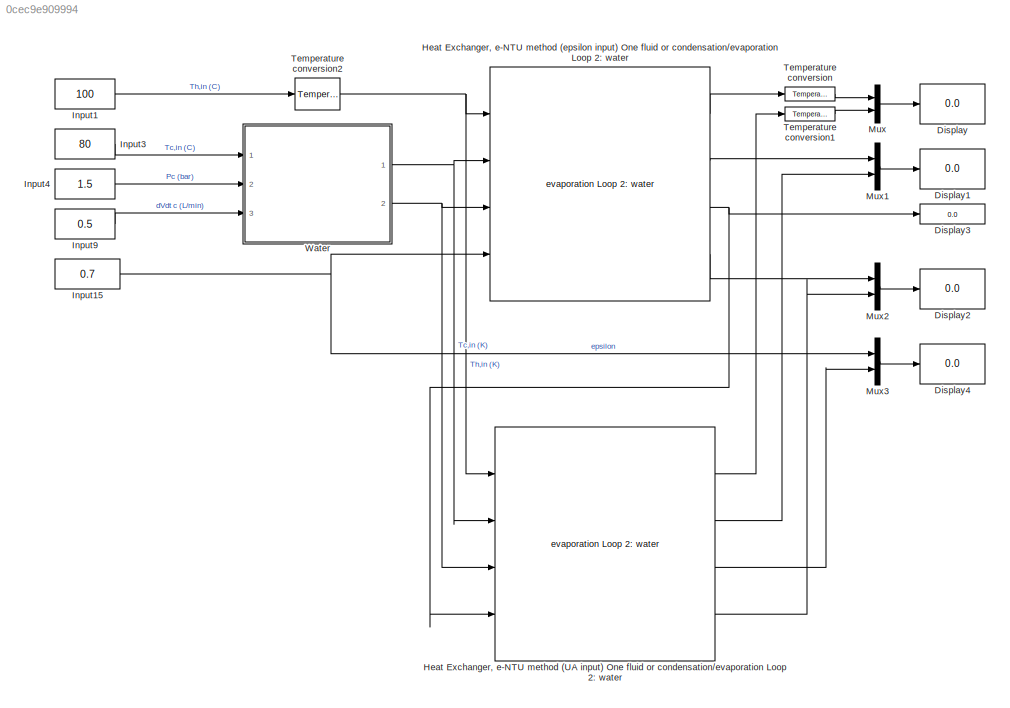
MODEL slx_0cec9e909994
KIND model
CONFIG AbsTol = auto
CONFIG EnableMultiTasking = off
CONFIG FixedStep = auto
CONFIG MaxStep = auto
CONFIG MinStep = auto
CONFIG RelTol = 1e-3
CONFIG SampleTimeConstraint = Unconstrained
CONFIG Solver = VariableStepAuto
CONFIG SolverName = VariableStepAuto
CONFIG StartTime = 0.0
CONFIG StopTime = 0
BLOCK [Display] Display
  Decimation = 1
  Ports = [1]
BLOCK [Display] Display1
  Decimation = 1
  Ports = [1]
BLOCK [Display] Display2
  Decimation = 1
  Ports = [1]
BLOCK [Display] Display3
  Decimation = 1
  Ports = [1]
BLOCK [Display] Display4
  Decimation = 1
  Ports = [1]
BLOCK [Reference] Heat Exchanger, e-NTU method (UA input) One fluid or condensation//evaporation Loop 2: water  REF=thermochemical/Heat exchangers/Heat Exchanger, e-NTU method (UA input)  (lib defined in slx_f9e0643dc704)
One fluid or condensation//evaporation
Loop 2: water
  Ports = [4, 4]
  SourceBlock = thermochemical/Heat exchangers/Heat Exchanger, e-NTU method (UA input)\nOne fluid or condensation//evaporation\nLoop 2: water
  SourceProductName = @ Thermochemical
  SourceType = heat_exchanger_one_fluid_eNTU
BLOCK [Reference] Heat Exchanger, e-NTU method (epsilon input) One fluid or condensation//evaporation Loop 2: water  REF=thermochemical/Heat exchangers/Heat Exchanger, e-NTU method (epsilon input)  (lib defined in slx_f9e0643dc704)
One fluid or condensation//evaporation
Loop 2: water
  Ports = [4, 4]
  SourceBlock = thermochemical/Heat exchangers/Heat Exchanger, e-NTU method (epsilon input)\nOne fluid or condensation//evaporation\nLoop 2: water
  SourceProductName = @ Thermochemical
  SourceType = heat_exchanger_one_fluid_eNTU_inv
BLOCK [Constant] Input1
  Value = 100
BLOCK [Constant] Input15
  Value = 0.7
BLOCK [Constant] Input3
  Value = 80
BLOCK [Constant] Input4
  Value = 1.5
BLOCK [Constant] Input9
  Value = 0.5
BLOCK [Mux] Mux
  DisplayOption = bar
  Inputs = 2
  Ports = [2, 1]
BLOCK [Mux] Mux1
  DisplayOption = bar
  Inputs = 2
  Ports = [2, 1]
BLOCK [Mux] Mux2
  DisplayOption = bar
  Inputs = 2
  Ports = [2, 1]
BLOCK [Mux] Mux3
  DisplayOption = bar
  Inputs = 2
  Ports = [2, 1]
BLOCK [Reference] Temperature conversion  REF=thermochemical/Conversions/Temperature  (lib defined in slx_f9e0643dc704)
conversion
  Ports = [1, 1]
  SourceBlock = thermochemical/Conversions/Temperature\nconversion
  SourceProductName = @ Thermochemical
  SourceType = convert_temperature
BLOCK [Reference] Temperature conversion1  REF=thermochemical/Conversions/Temperature  (lib defined in slx_f9e0643dc704)
conversion
  Ports = [1, 1]
  SourceBlock = thermochemical/Conversions/Temperature\nconversion
  SourceProductName = @ Thermochemical
  SourceType = convert_temperature
BLOCK [Reference] Temperature conversion2  REF=thermochemical/Conversions/Temperature  (lib defined in slx_f9e0643dc704)
conversion
  Ports = [1, 1]
  SourceBlock = thermochemical/Conversions/Temperature\nconversion
  SourceProductName = @ Thermochemical
  SourceType = convert_temperature
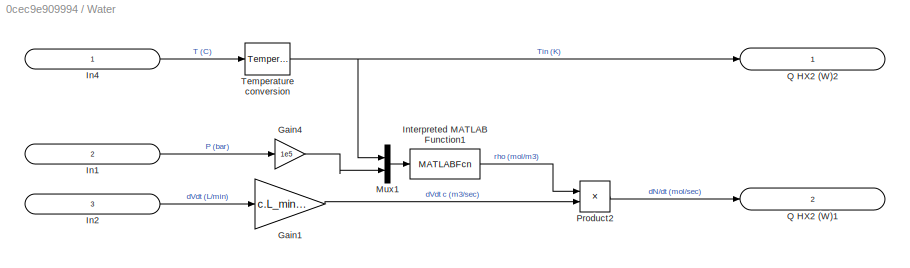
BLOCK [SubSystem] Water
  Ports = [3, 2]
  RequestExecContextInheritance = off
  Variant = off
BLOCK [Gain] Water/Gain1
  Gain = c.L_min_to_m3_sec
  OutDataTypeStr = Inherit: Inherit via internal rule
  ParamDataTypeStr = Inherit: Inherit via internal rule
  SaturateOnIntegerOverflow = off
BLOCK [Gain] Water/Gain4
  Gain = 1e5
  OutDataTypeStr = Inherit: Inherit via internal rule
  ParamDataTypeStr = Inherit: Inherit via internal rule
  SaturateOnIntegerOverflow = off
BLOCK [Inport] Water/In1
  IconDisplay = Signal name
  Port = 2
BLOCK [Inport] Water/In2
  IconDisplay = Signal name
  Port = 3
BLOCK [Inport] Water/In4
  IconDisplay = Signal name
BLOCK [MATLABFcn] Water/Interpreted MATLAB Function1
  MATLABFcn = CoolProp.PropsSI('DMOLAR','T',u(1),'P',u(2),'Water')
  OutputDimensions = 1
  Ports = [1, 1]
BLOCK [Mux] Water/Mux1
  DisplayOption = bar
  Inputs = 2
  Ports = [2, 1]
BLOCK [Product] Water/Product2
  InputSameDT = off
  OutDataTypeStr = Inherit: Inherit via internal rule
  Ports = [2, 1]
  RndMeth = Floor
  SaturateOnIntegerOverflow = off
BLOCK [Outport] Water/Q HX2 (W)1
  IconDisplay = Signal name
  Port = 2
BLOCK [Outport] Water/Q HX2 (W)2
  IconDisplay = Signal name
BLOCK [Reference] Water/Temperature conversion  REF=thermochemical/Conversions/Temperature  (lib defined in slx_f9e0643dc704)
conversion
  Ports = [1, 1]
  SourceBlock = thermochemical/Conversions/Temperature\nconversion
  SourceProductName = @ Thermochemical
  SourceType = convert_temperature
LINE Heat Exchanger, e-NTU method (UA input) One fluid or condensation//evaporation Loop 2: water:1 -> Temperature conversion1:1
LINE Heat Exchanger, e-NTU method (UA input) One fluid or condensation//evaporation Loop 2: water:2 -> Mux1:2
LINE Heat Exchanger, e-NTU method (UA input) One fluid or condensation//evaporation Loop 2: water:3 -> Mux3:2
LINE Heat Exchanger, e-NTU method (UA input) One fluid or condensation//evaporation Loop 2: water:4 -> Mux2:2
LINE Heat Exchanger, e-NTU method (epsilon input) One fluid or condensation//evaporation Loop 2: water:1 -> Temperature conversion:1
LINE Heat Exchanger, e-NTU method (epsilon input) One fluid or condensation//evaporation Loop 2: water:2 -> Mux1:1
NET Heat Exchanger, e-NTU method (epsilon input) One fluid or condensation//evaporation Loop 2: water:3 -> Display3:1, Heat Exchanger, e-NTU method (UA input) One fluid or condensation//evaporation Loop 2: water:4
LINE Heat Exchanger, e-NTU method (epsilon input) One fluid or condensation//evaporation Loop 2: water:4 -> Mux2:1
NET Input15:1 -> Heat Exchanger, e-NTU method (epsilon input) One fluid or condensation//evaporation Loop 2: water:4, Mux3:1
LINE Input1:1 -> Temperature conversion2:1
LINE Input3:1 -> Water:1
LINE Input4:1 -> Water:2
LINE Input9:1 -> Water:3
LINE Mux1:1 -> Display1:1
LINE Mux2:1 -> Display2:1
LINE Mux3:1 -> Display4:1
LINE Mux:1 -> Display:1
LINE Temperature conversion1:1 -> Mux:2
NET Temperature conversion2:1 -> Heat Exchanger, e-NTU method (UA input) One fluid or condensation//evaporation Loop 2: water:1, Heat Exchanger, e-NTU method (epsilon input) One fluid or condensation//evaporation Loop 2: water:1
LINE Temperature conversion:1 -> Mux:1
LINE Water/Gain1:1 -> Water/Product2:2
LINE Water/Gain4:1 -> Water/Mux1:2
LINE Water/In1:1 -> Water/Gain4:1
LINE Water/In2:1 -> Water/Gain1:1
LINE Water/In4:1 -> Water/Temperature conversion:1
LINE Water/Interpreted MATLAB Function1:1 -> Water/Product2:1
LINE Water/Mux1:1 -> Water/Interpreted MATLAB Function1:1
LINE Water/Product2:1 -> Water/Q HX2 (W)1:1
NET Water/Temperature conversion:1 -> Water/Mux1:1, Water/Q HX2 (W)2:1
NET Water:1 -> Heat Exchanger, e-NTU method (UA input) One fluid or condensation//evaporation Loop 2: water:2, Heat Exchanger, e-NTU method (epsilon input) One fluid or condensation//evaporation Loop 2: water:2
NET Water:2 -> Heat Exchanger, e-NTU method (UA input) One fluid or condensation//evaporation Loop 2: water:3, Heat Exchanger, e-NTU method (epsilon input) One fluid or condensation//evaporation Loop 2: water:3
note: NET lines group one-source signal fan-out (src -> all destinations, sorted); 1:1 wires keep LINE
